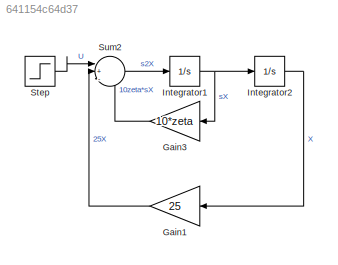
MODEL slx_641154c64d37
KIND model
CONFIG AbsTol = auto
CONFIG EnableMultiTasking = off
CONFIG FixedStep = auto
CONFIG MaxStep = auto
CONFIG MinStep = auto
CONFIG RelTol = 1e-3
CONFIG SampleTimeConstraint = Unconstrained
CONFIG SolverName = ode45
CONFIG StartTime = 0.0
CONFIG StopTime = 3
BLOCK [Gain] Gain1
  Gain = 25
BLOCK [Gain] Gain3
  Gain = 10*zeta
BLOCK [Integrator] Integrator1
  Ports = [1, 1]
BLOCK [Integrator] Integrator2
  Ports = [1, 1]
BLOCK [Step] Step
  SampleTime = 0
  Time = 0
BLOCK [Sum] Sum2
  Inputs = |+--
  Ports = [3, 1]
LINE Gain1:1 -> Sum2:2
LINE Gain3:1 -> Sum2:3
NET Integrator1:1 -> Gain3:1, Integrator2:1
LINE Integrator2:1 -> Gain1:1
LINE Step:1 -> Sum2:1
LINE Sum2:1 -> Integrator1:1
note: NET lines group one-source signal fan-out (src -> all destinations, sorted); 1:1 wires keep LINE
